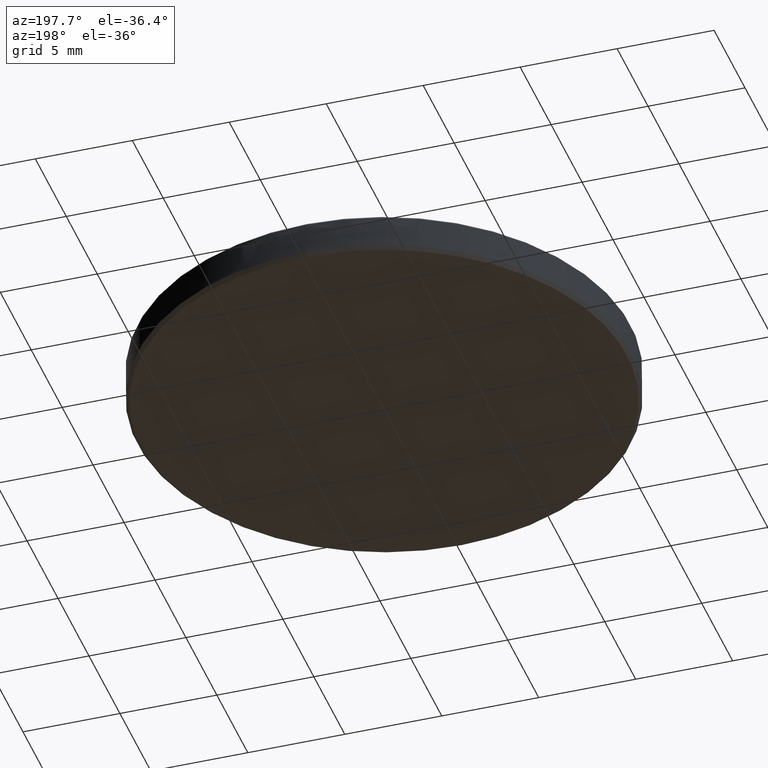
[diagram: clean part render]
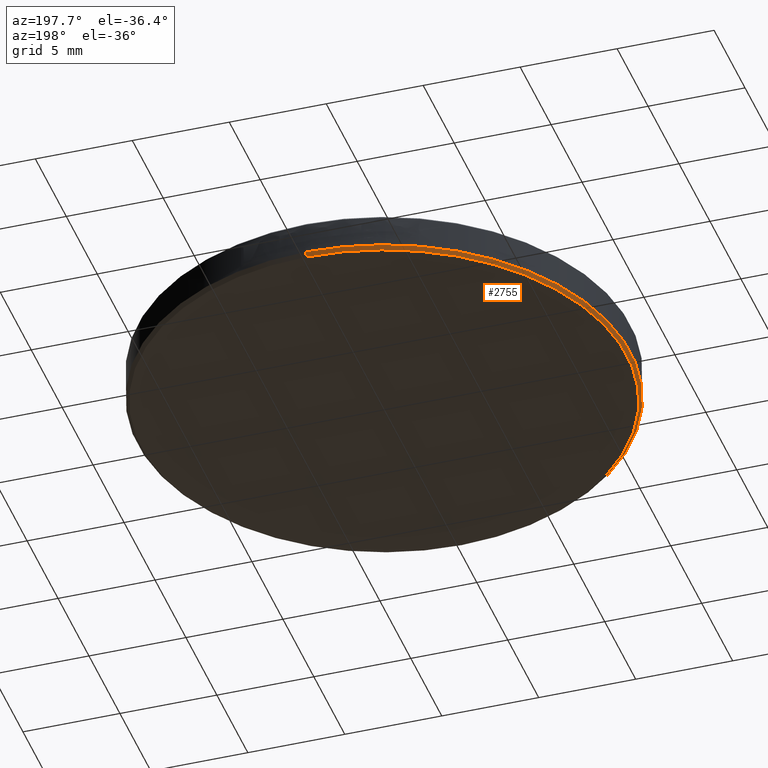
[diagram: same view with one face highlighted and labeled with its STEP entity id]
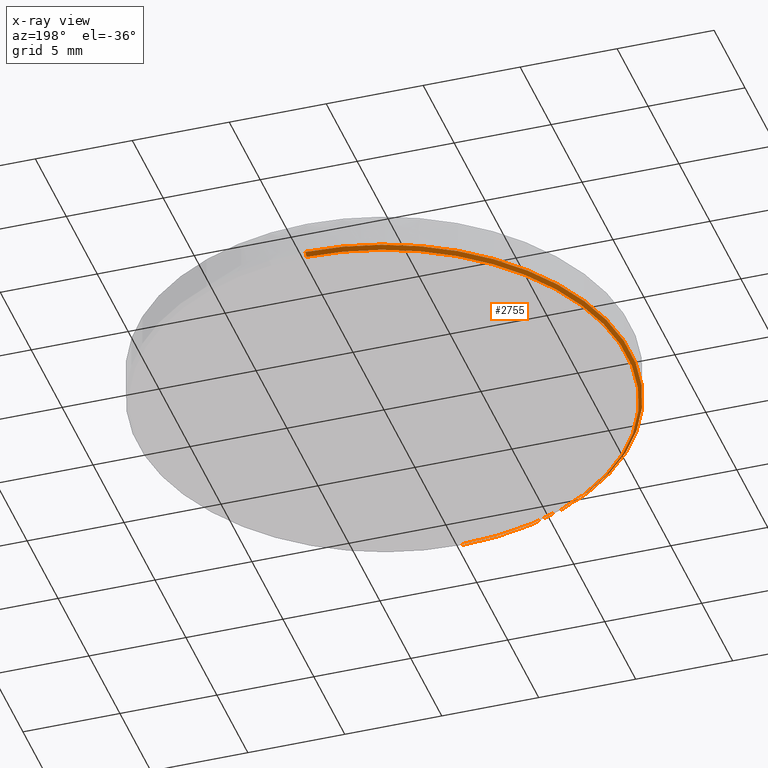
[diagram: x-ray of the same camera — body ghosted, the highlighted face saturated]
A machine part, auxiliary view. The second image highlights one B-rep face of the part: STEP entity #2755.
The next image is the same camera in x-ray: the body ghosted, the highlighted face saturated — about 0% of this face is hidden behind the body in this view.
In plain terms, the highlighted conical surface has half-angle 45 deg.
Its self-contained STEP definition (entity closure, byte-faithful):
#114 = AXIS2_PLACEMENT_3D ( 'NONE', #2508, #1220, #2729 ) ;
#215 = VECTOR ( 'NONE', #365, 39.37007874015748143 ) ;
#242 = FACE_OUTER_BOUND ( 'NONE', #1611, .T. ) ;
#365 = DIRECTION ( 'NONE',  ( 0.0000000000000000000, -0.7071067811865463515, 0.7071067811865486830 ) ) ;
#556 = CARTESIAN_POINT ( 'NONE',  ( 0.0000000000000000000, -0.4930402875867466173, -0.04094488188976407039 ) ) ;
#748 = ORIENTED_EDGE ( 'NONE', *, *, #2681, .F. ) ;
#865 = CARTESIAN_POINT ( 'NONE',  ( 6.080618048087381191E-17, 0.4930402875867466173, -0.04094488188976387610 ) ) ;
#963 = VERTEX_POINT ( 'NONE', #865 ) ;
#1097 = AXIS2_PLACEMENT_3D ( 'NONE', #2810, #2669, #2639 ) ;
#1114 = VERTEX_POINT ( 'NONE', #2261 ) ;
#1124 = VERTEX_POINT ( 'NONE', #1192 ) ;
#1155 = DIRECTION ( 'NONE',  ( 8.659560562354916834E-17, 0.7071067811865461294, 0.7071067811865489050 ) ) ;
#1160 = ORIENTED_EDGE ( 'NONE', *, *, #1250, .T. ) ;
#1186 = LINE ( 'NONE', #1593, #1358 ) ;
#1192 = CARTESIAN_POINT ( 'NONE',  ( 0.0000000000000000000, -0.5000000000000000000, -0.03398516947651064601 ) ) ;
#1220 = DIRECTION ( 'NONE',  ( -0.0000000000000000000, -1.836970198721029688E-16, 1.000000000000000000 ) ) ;
#1250 = EDGE_CURVE ( 'NONE', #963, #2414, #2735, .T. ) ;
#1286 = EDGE_CURVE ( 'NONE', #963, #1114, #1186, .T. ) ;
#1289 = CONICAL_SURFACE ( 'NONE', #2041, 0.4930402875867466173, 0.7853981633974465026 ) ;
#1358 = VECTOR ( 'NONE', #1155, 39.37007874015748143 ) ;
#1374 = ORIENTED_EDGE ( 'NONE', *, *, #2646, .T. ) ;
#1466 = LINE ( 'NONE', #2262, #215 ) ;
#1593 = CARTESIAN_POINT ( 'NONE',  ( 6.038002100437997579E-17, 0.4930402875867466173, -0.04094488188976387610 ) ) ;
#1611 = EDGE_LOOP ( 'NONE', ( #2165, #1160, #1374, #748 ) ) ;
#1771 = DIRECTION ( 'NONE',  ( -0.0000000000000000000, -1.836970198721029688E-16, 1.000000000000000000 ) ) ;
#2018 = CARTESIAN_POINT ( 'NONE',  ( 0.0000000000000000000, 1.511522722569666275E-17, -0.04094488188976397325 ) ) ;
#2041 = AXIS2_PLACEMENT_3D ( 'NONE', #2018, #1771, #2395 ) ;
#2165 = ORIENTED_EDGE ( 'NONE', *, *, #1286, .F. ) ;
#2261 = CARTESIAN_POINT ( 'NONE',  ( 6.123233995736766036E-17, 0.5000000000000000000, -0.03398516947651045866 ) ) ;
#2262 = CARTESIAN_POINT ( 'NONE',  ( 0.0000000000000000000, -0.4930402875867466173, -0.04094488188976407039 ) ) ;
#2395 = DIRECTION ( 'NONE',  ( 0.0000000000000000000, -1.000000000000000000, -1.904657228760170810E-16 ) ) ;
#2414 = VERTEX_POINT ( 'NONE', #556 ) ;
#2508 = CARTESIAN_POINT ( 'NONE',  ( 0.0000000000000000000, 1.383674879621512820E-17, -0.03398516947651054887 ) ) ;
#2524 = CIRCLE ( 'NONE', #114, 0.5000000000000000000 ) ;
#2639 = DIRECTION ( 'NONE',  ( 0.0000000000000000000, -1.000000000000000000, -1.904657228760170810E-16 ) ) ;
#2646 = EDGE_CURVE ( 'NONE', #2414, #1124, #1466, .T. ) ;
#2669 = DIRECTION ( 'NONE',  ( -0.0000000000000000000, -1.836970198721029688E-16, 1.000000000000000000 ) ) ;
#2681 = EDGE_CURVE ( 'NONE', #1114, #1124, #2524, .T. ) ;
#2729 = DIRECTION ( 'NONE',  ( 0.0000000000000000000, -1.000000000000000000, -1.878145495644180839E-16 ) ) ;
#2735 = CIRCLE ( 'NONE', #1097, 0.4930402875867466173 ) ;
#2755 = ADVANCED_FACE ( 'NONE', ( #242 ), #1289, .T. ) ;
#2810 = CARTESIAN_POINT ( 'NONE',  ( 0.0000000000000000000, 1.511522722569666275E-17, -0.04094488188976397325 ) ) ;